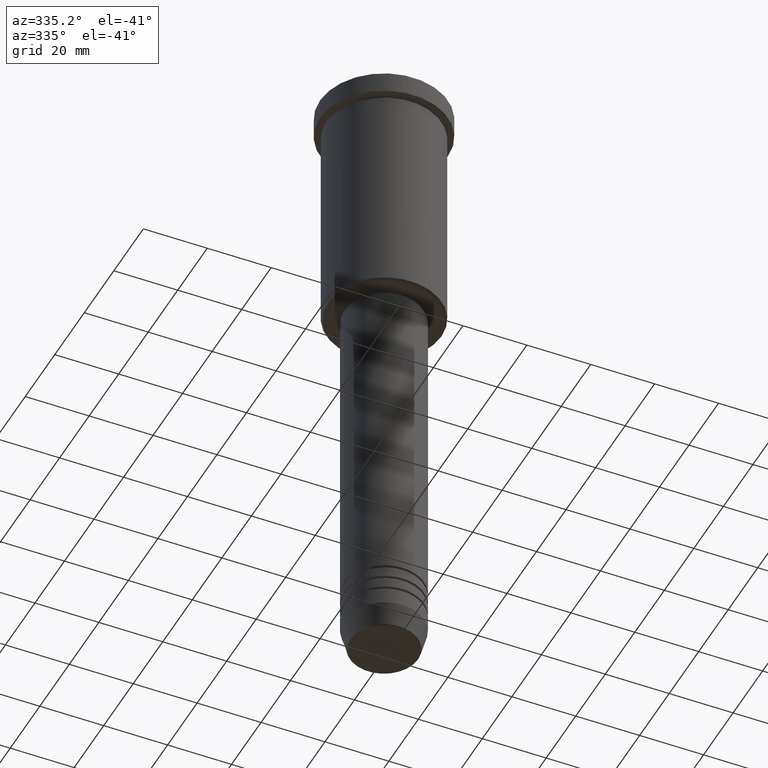
[diagram: clean part render]
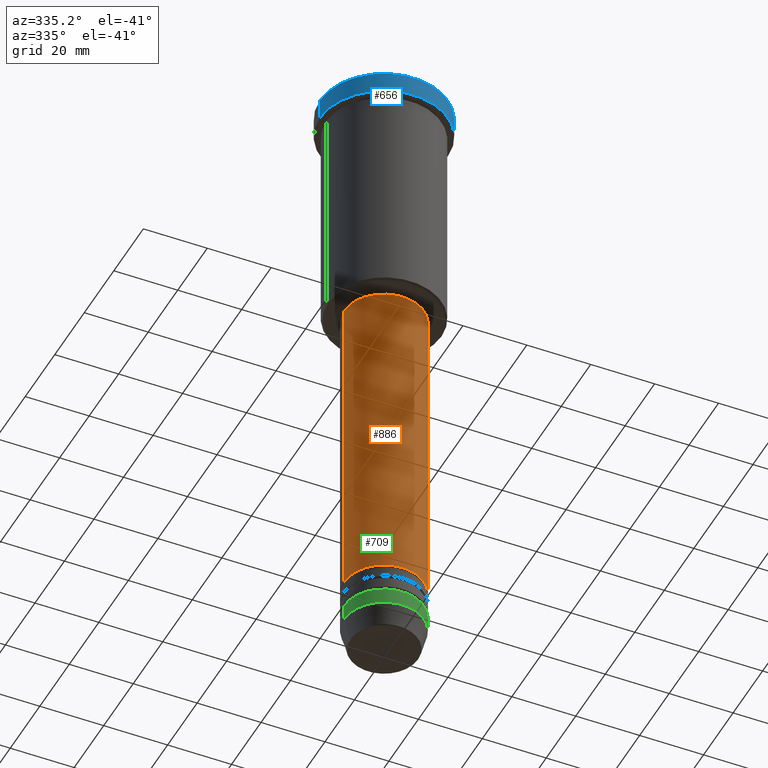
[diagram: same view with three faces highlighted in distinct colors, each labeled with its STEP entity id]
A machine part, auxiliary view with three faces highlighted in distinct colors.
Their STEP definitions:

[orange] entity #886 — the highlighted cylindrical surface (partial cylindrical patch) has radius 12.5 mm, axis along (-0, -0, 1).
#19 = EDGE_LOOP ( 'NONE', ( #267, #1136, #721, #119 ) ) ;
#69 = VECTOR ( 'NONE', #816, 1000.000000000000000 ) ;
#94 = DIRECTION ( 'NONE',  ( -0.000000000000000000, -0.000000000000000000, 1.000000000000000000 ) ) ;
#119 = ORIENTED_EDGE ( 'NONE', *, *, #1121, .F. ) ;
#123 = CIRCLE ( 'NONE', #482, 12.50000000000000000 ) ;
#171 = DIRECTION ( 'NONE',  ( 1.000000000000000000, 0.000000000000000000, 0.000000000000000000 ) ) ;
#176 = CARTESIAN_POINT ( 'NONE',  ( 12.50000000000000000, 0.000000000000000000, 0.000000000000000000 ) ) ;
#197 = AXIS2_PLACEMENT_3D ( 'NONE', #617, #94, #171 ) ;
#227 = LINE ( 'NONE', #242, #291 ) ;
#242 = CARTESIAN_POINT ( 'NONE',  ( -12.50000000000000000, 1.530808498934191521E-15, 0.000000000000000000 ) ) ;
#267 = ORIENTED_EDGE ( 'NONE', *, *, #1183, .F. ) ;
#269 = FACE_OUTER_BOUND ( 'NONE', #19, .T. ) ;
#278 = CARTESIAN_POINT ( 'NONE',  ( 0.000000000000000000, 0.000000000000000000, -179.0000000000000284 ) ) ;
#291 = VECTOR ( 'NONE', #603, 1000.000000000000000 ) ;
#302 = DIRECTION ( 'NONE',  ( 1.000000000000000000, 0.000000000000000000, 0.000000000000000000 ) ) ;
#414 = VERTEX_POINT ( 'NONE', #453 ) ;
#423 = VERTEX_POINT ( 'NONE', #625 ) ;
#453 = CARTESIAN_POINT ( 'NONE',  ( 12.50000000000000000, 0.000000000000000000, -77.00000000000004263 ) ) ;
#460 = CARTESIAN_POINT ( 'NONE',  ( -12.50000000000000000, 1.530808498934191521E-15, -179.0000000000000284 ) ) ;
#472 = DIRECTION ( 'NONE',  ( -0.000000000000000000, -0.000000000000000000, 1.000000000000000000 ) ) ;
#482 = AXIS2_PLACEMENT_3D ( 'NONE', #754, #472, #302 ) ;
#603 = DIRECTION ( 'NONE',  ( -0.000000000000000000, -0.000000000000000000, 1.000000000000000000 ) ) ;
#617 = CARTESIAN_POINT ( 'NONE',  ( 0.000000000000000000, 0.000000000000000000, 0.000000000000000000 ) ) ;
#625 = CARTESIAN_POINT ( 'NONE',  ( -12.50000000000000000, 1.530808498934191521E-15, -77.00000000000004263 ) ) ;
#720 = CIRCLE ( 'NONE', #867, 12.50000000000000000 ) ;
#721 = ORIENTED_EDGE ( 'NONE', *, *, #950, .T. ) ;
#754 = CARTESIAN_POINT ( 'NONE',  ( 0.000000000000000000, 0.000000000000000000, -77.00000000000004263 ) ) ;
#816 = DIRECTION ( 'NONE',  ( -0.000000000000000000, -0.000000000000000000, 1.000000000000000000 ) ) ;
#821 = DIRECTION ( 'NONE',  ( -0.000000000000000000, -0.000000000000000000, 1.000000000000000000 ) ) ;
#867 = AXIS2_PLACEMENT_3D ( 'NONE', #278, #821, #985 ) ;
#886 = ADVANCED_FACE ( 'NONE', ( #269 ), #1077, .T. ) ;
#912 = EDGE_CURVE ( 'NONE', #1095, #970, #720, .T. ) ;
#950 = EDGE_CURVE ( 'NONE', #970, #414, #1090, .T. ) ;
#970 = VERTEX_POINT ( 'NONE', #1164 ) ;
#985 = DIRECTION ( 'NONE',  ( 1.000000000000000000, 0.000000000000000000, 0.000000000000000000 ) ) ;
#1077 = CYLINDRICAL_SURFACE ( 'NONE', #197, 12.50000000000000000 ) ;
#1090 = LINE ( 'NONE', #176, #69 ) ;
#1095 = VERTEX_POINT ( 'NONE', #460 ) ;
#1121 = EDGE_CURVE ( 'NONE', #423, #414, #123, .T. ) ;
#1136 = ORIENTED_EDGE ( 'NONE', *, *, #912, .T. ) ;
#1164 = CARTESIAN_POINT ( 'NONE',  ( 12.50000000000000000, 0.000000000000000000, -179.0000000000000284 ) ) ;
#1183 = EDGE_CURVE ( 'NONE', #1095, #423, #227, .T. ) ;

[blue] entity #656 — the highlighted cylindrical surface (partial cylindrical patch) has radius 20 mm, axis along (-0, -0, 1).
#57 = CARTESIAN_POINT ( 'NONE',  ( 20.00000000000000000, 0.000000000000000000, 0.000000000000000000 ) ) ;
#84 = AXIS2_PLACEMENT_3D ( 'NONE', #847, #1127, #303 ) ;
#109 = DIRECTION ( 'NONE',  ( 1.000000000000000000, 0.000000000000000000, 0.000000000000000000 ) ) ;
#144 = VERTEX_POINT ( 'NONE', #1033 ) ;
#169 = ORIENTED_EDGE ( 'NONE', *, *, #312, .T. ) ;
#211 = CIRCLE ( 'NONE', #430, 20.00000000000000000 ) ;
#248 = DIRECTION ( 'NONE',  ( -0.000000000000000000, -0.000000000000000000, 1.000000000000000000 ) ) ;
#274 = VECTOR ( 'NONE', #248, 1000.000000000000000 ) ;
#275 = ORIENTED_EDGE ( 'NONE', *, *, #829, .F. ) ;
#303 = DIRECTION ( 'NONE',  ( 1.000000000000000000, 0.000000000000000000, 0.000000000000000000 ) ) ;
#309 = VECTOR ( 'NONE', #495, 1000.000000000000000 ) ;
#312 = EDGE_CURVE ( 'NONE', #144, #413, #211, .T. ) ;
#313 = CARTESIAN_POINT ( 'NONE',  ( -20.00000000000000000, 2.449293598294706513E-15, 0.000000000000000000 ) ) ;
#321 = DIRECTION ( 'NONE',  ( 1.000000000000000000, 0.000000000000000000, 0.000000000000000000 ) ) ;
#371 = FACE_OUTER_BOUND ( 'NONE', #391, .T. ) ;
#391 = EDGE_LOOP ( 'NONE', ( #275, #736, #661, #169 ) ) ;
#413 = VERTEX_POINT ( 'NONE', #462 ) ;
#422 = CARTESIAN_POINT ( 'NONE',  ( 0.000000000000000000, 0.000000000000000000, -0.4999999999999970024 ) ) ;
#428 = LINE ( 'NONE', #313, #274 ) ;
#430 = AXIS2_PLACEMENT_3D ( 'NONE', #422, #786, #321 ) ;
#462 = CARTESIAN_POINT ( 'NONE',  ( -20.00000000000000000, 2.449293598294706513E-15, -0.4999999999999970024 ) ) ;
#486 = CARTESIAN_POINT ( 'NONE',  ( 0.000000000000000000, 0.000000000000000000, 0.000000000000000000 ) ) ;
#495 = DIRECTION ( 'NONE',  ( -0.000000000000000000, -0.000000000000000000, 1.000000000000000000 ) ) ;
#621 = VERTEX_POINT ( 'NONE', #652 ) ;
#652 = CARTESIAN_POINT ( 'NONE',  ( 20.00000000000000000, 0.000000000000000000, -6.999999999999995559 ) ) ;
#656 = ADVANCED_FACE ( 'NONE', ( #371 ), #1107, .T. ) ;
#661 = ORIENTED_EDGE ( 'NONE', *, *, #806, .T. ) ;
#672 = EDGE_CURVE ( 'NONE', #748, #621, #1000, .T. ) ;
#687 = LINE ( 'NONE', #57, #309 ) ;
#736 = ORIENTED_EDGE ( 'NONE', *, *, #672, .T. ) ;
#748 = VERTEX_POINT ( 'NONE', #1067 ) ;
#755 = DIRECTION ( 'NONE',  ( -0.000000000000000000, -0.000000000000000000, 1.000000000000000000 ) ) ;
#786 = DIRECTION ( 'NONE',  ( 0.000000000000000000, 0.000000000000000000, -1.000000000000000000 ) ) ;
#806 = EDGE_CURVE ( 'NONE', #621, #144, #687, .T. ) ;
#829 = EDGE_CURVE ( 'NONE', #748, #413, #428, .T. ) ;
#847 = CARTESIAN_POINT ( 'NONE',  ( 0.000000000000000000, 0.000000000000000000, -6.999999999999995559 ) ) ;
#888 = AXIS2_PLACEMENT_3D ( 'NONE', #486, #755, #109 ) ;
#1000 = CIRCLE ( 'NONE', #84, 20.00000000000000000 ) ;
#1033 = CARTESIAN_POINT ( 'NONE',  ( 20.00000000000000000, 0.000000000000000000, -0.4999999999999970024 ) ) ;
#1067 = CARTESIAN_POINT ( 'NONE',  ( -20.00000000000000000, 2.449293598294706513E-15, -6.999999999999995559 ) ) ;
#1107 = CYLINDRICAL_SURFACE ( 'NONE', #888, 20.00000000000000000 ) ;
#1127 = DIRECTION ( 'NONE',  ( -0.000000000000000000, -0.000000000000000000, 1.000000000000000000 ) ) ;

[green] entity #709 — the highlighted cylindrical surface (partial cylindrical patch) has radius 12.5 mm, axis along (-0, -0, 1).
#48 = ORIENTED_EDGE ( 'NONE', *, *, #1019, .T. ) ;
#49 = VERTEX_POINT ( 'NONE', #637 ) ;
#62 = DIRECTION ( 'NONE',  ( 1.000000000000000000, 0.000000000000000000, 0.000000000000000000 ) ) ;
#92 = DIRECTION ( 'NONE',  ( 1.000000000000000000, 0.000000000000000000, 0.000000000000000000 ) ) ;
#115 = CARTESIAN_POINT ( 'NONE',  ( 12.50000000000000000, 0.000000000000000000, -193.0000000000000284 ) ) ;
#154 = VERTEX_POINT ( 'NONE', #115 ) ;
#198 = DIRECTION ( 'NONE',  ( 1.000000000000000000, 0.000000000000000000, 0.000000000000000000 ) ) ;
#208 = DIRECTION ( 'NONE',  ( -0.000000000000000000, -0.000000000000000000, 1.000000000000000000 ) ) ;
#218 = ORIENTED_EDGE ( 'NONE', *, *, #376, .F. ) ;
#232 = CIRCLE ( 'NONE', #518, 12.50000000000000000 ) ;
#239 = DIRECTION ( 'NONE',  ( -0.000000000000000000, -0.000000000000000000, 1.000000000000000000 ) ) ;
#279 = CARTESIAN_POINT ( 'NONE',  ( -12.50000000000000000, 1.530808498934191521E-15, -188.0000000000000284 ) ) ;
#298 = CARTESIAN_POINT ( 'NONE',  ( 0.000000000000000000, 0.000000000000000000, -193.0000000000000284 ) ) ;
#324 = CARTESIAN_POINT ( 'NONE',  ( -12.50000000000000000, 1.530808498934191521E-15, 0.000000000000000000 ) ) ;
#376 = EDGE_CURVE ( 'NONE', #455, #49, #232, .T. ) ;
#388 = LINE ( 'NONE', #1126, #556 ) ;
#401 = FACE_OUTER_BOUND ( 'NONE', #771, .T. ) ;
#410 = CARTESIAN_POINT ( 'NONE',  ( -12.50000000000000000, 1.530808498934191521E-15, -193.0000000000000284 ) ) ;
#429 = AXIS2_PLACEMENT_3D ( 'NONE', #298, #208, #198 ) ;
#455 = VERTEX_POINT ( 'NONE', #279 ) ;
#466 = CIRCLE ( 'NONE', #429, 12.50000000000000000 ) ;
#518 = AXIS2_PLACEMENT_3D ( 'NONE', #1062, #239, #92 ) ;
#556 = VECTOR ( 'NONE', #750, 1000.000000000000000 ) ;
#597 = AXIS2_PLACEMENT_3D ( 'NONE', #1045, #604, #62 ) ;
#604 = DIRECTION ( 'NONE',  ( -0.000000000000000000, -0.000000000000000000, 1.000000000000000000 ) ) ;
#630 = VECTOR ( 'NONE', #977, 1000.000000000000000 ) ;
#637 = CARTESIAN_POINT ( 'NONE',  ( 12.50000000000000000, 0.000000000000000000, -188.0000000000000284 ) ) ;
#674 = CYLINDRICAL_SURFACE ( 'NONE', #597, 12.50000000000000000 ) ;
#690 = ORIENTED_EDGE ( 'NONE', *, *, #1074, .T. ) ;
#709 = ADVANCED_FACE ( 'NONE', ( #401 ), #674, .T. ) ;
#750 = DIRECTION ( 'NONE',  ( -0.000000000000000000, -0.000000000000000000, 1.000000000000000000 ) ) ;
#771 = EDGE_LOOP ( 'NONE', ( #1055, #690, #48, #218 ) ) ;
#772 = EDGE_CURVE ( 'NONE', #1148, #455, #967, .T. ) ;
#967 = LINE ( 'NONE', #324, #630 ) ;
#977 = DIRECTION ( 'NONE',  ( -0.000000000000000000, -0.000000000000000000, 1.000000000000000000 ) ) ;
#1019 = EDGE_CURVE ( 'NONE', #154, #49, #388, .T. ) ;
#1045 = CARTESIAN_POINT ( 'NONE',  ( 0.000000000000000000, 0.000000000000000000, 0.000000000000000000 ) ) ;
#1055 = ORIENTED_EDGE ( 'NONE', *, *, #772, .F. ) ;
#1062 = CARTESIAN_POINT ( 'NONE',  ( 0.000000000000000000, 0.000000000000000000, -188.0000000000000284 ) ) ;
#1074 = EDGE_CURVE ( 'NONE', #1148, #154, #466, .T. ) ;
#1126 = CARTESIAN_POINT ( 'NONE',  ( 12.50000000000000000, 0.000000000000000000, 0.000000000000000000 ) ) ;
#1148 = VERTEX_POINT ( 'NONE', #410 ) ;